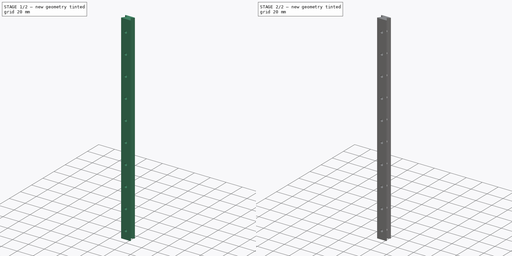
[diagram: build sequence overview — one tinted view per stage of 2, left to right]
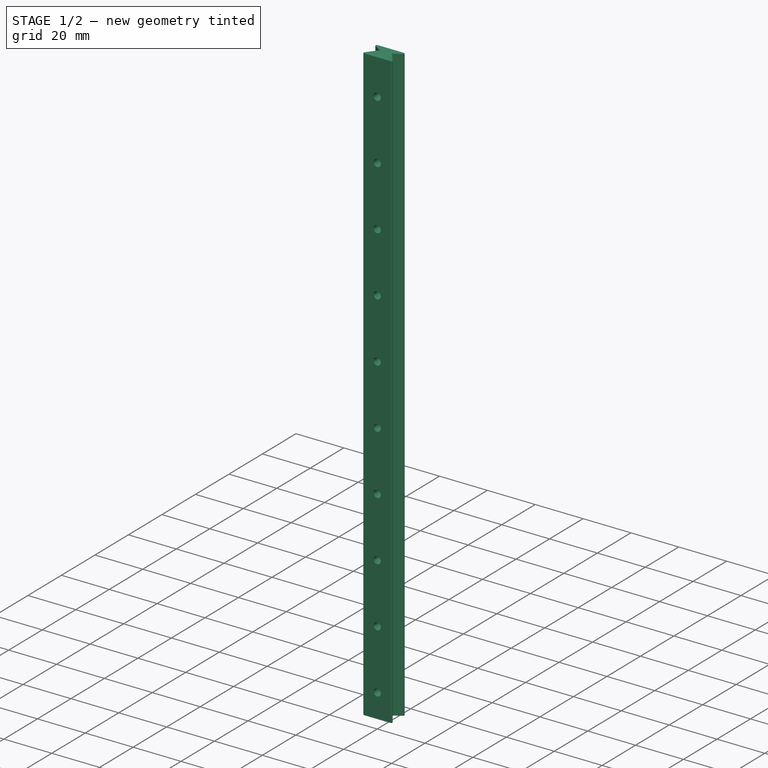
[diagram: stage 1 of 2 — iso view after this stage's code; geometry added in this stage tinted green]
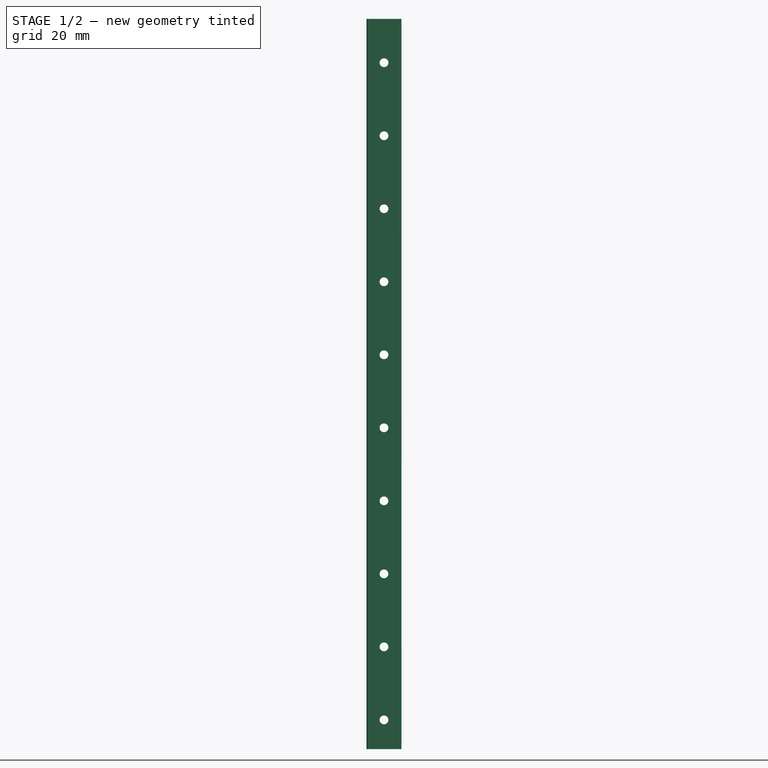
[diagram: stage 1 of 2 — front view after this stage's code; geometry added in this stage tinted green]
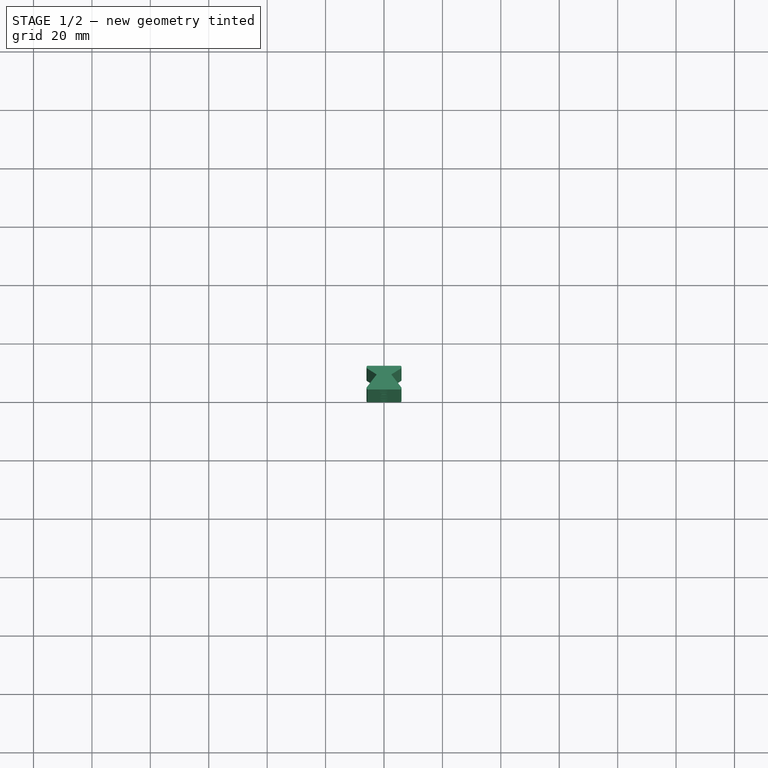
[diagram: stage 1 of 2 — top view after this stage's code; geometry added in this stage tinted green]
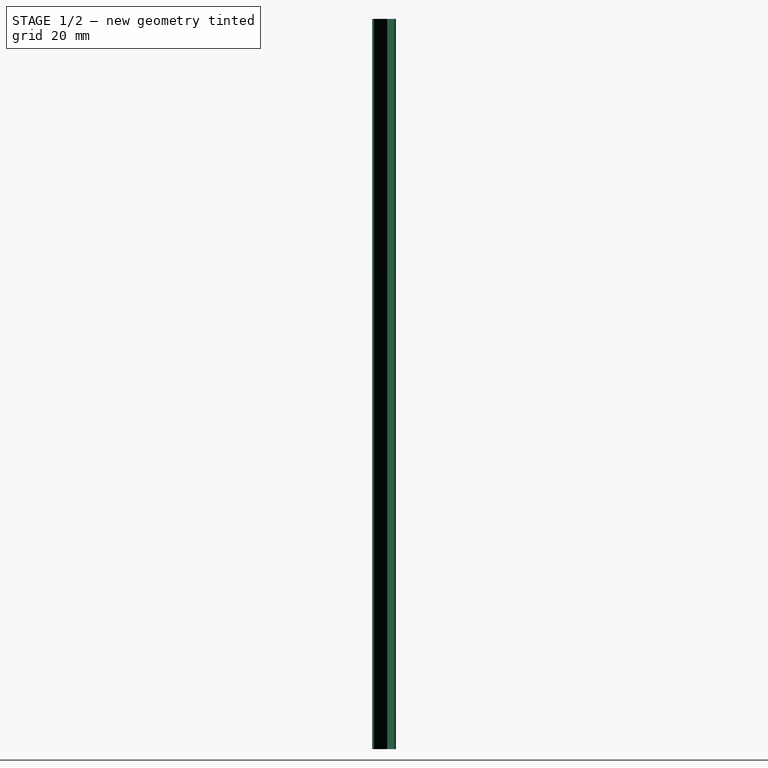
[diagram: stage 1 of 2 — right view after this stage's code; geometry added in this stage tinted green]
FCSTD DOCUMENT  (FreeCAD 0.21R33771 (Git))
Label: Guida-quadra-12
License: All rights reserved
LicenseURL: https://en.wikipedia.org/wiki/All_rights_reserved
objects: Sketcher::SketchObject×3, PartDesign::Pocket×2, PartDesign::Pad×1, PartDesign::Body×1
note: 10 computed .brp shape members not serialized (recipe doc carries the construction recipe); baked Part::Feature solids carry a one-line shape summary decoded from their .brp

FEATURE [Sketcher::SketchObject] Sketch
  FullyConstrained = true
  MapMode = 5
  Support = -> [XY_Plane]
  sketch-geometry (10):
    g0: LineSegment StartX=-5.5 StartY=0 StartZ=0 EndX=5.5 EndY=0 EndZ=0
    g1: LineSegment StartX=5.5 StartY=8.15196 StartZ=0 EndX=-5.5 EndY=8.15196 EndZ=0
    g2: LineSegment StartX=-5.76828 StartY=7.23003 StartZ=0 EndX=-2.5 EndY=5.15196 EndZ=0
    g3: LineSegment StartX=-2.5 StartY=5.15196 StartZ=0 EndX=-5.89401 EndY=0.807831 EndZ=0
    g4: LineSegment StartX=5.76828 StartY=7.23003 StartZ=0 EndX=2.5 EndY=5.15196 EndZ=0
    g5: LineSegment StartX=2.5 StartY=5.15196 StartZ=0 EndX=5.89401 EndY=0.807831 EndZ=0
    g6: ArcOfCircle CenterX=-5.5 CenterY=0.5 CenterZ=0 NormalX=0 NormalY=0 NormalZ=1 AngleXU=0 Radius=0.5 StartAngle=2.47837 EndAngle=4.71239
    g7: ArcOfCircle CenterX=5.5 CenterY=0.5 CenterZ=0 NormalX=0 NormalY=0 NormalZ=1 AngleXU=0 Radius=0.5 StartAngle=4.71239 EndAngle=6.94641
    g8: ArcOfCircle CenterX=-5.5 CenterY=7.65196 CenterZ=0 NormalX=0 NormalY=0 NormalZ=1 AngleXU=0 Radius=0.5 StartAngle=1.5708 EndAngle=4.14604
    g9: ArcOfCircle CenterX=5.5 CenterY=7.65196 CenterZ=0 NormalX=0 NormalY=0 NormalZ=1 AngleXU=0 Radius=0.5 StartAngle=5.27874 EndAngle=7.85398
  constraints (23):
    c: Coincident(g3,g2)
    c: Coincident(g5,g4)
    c: Equal(g0,g1)
    c: Tangent(g3,g6) = -1.5708
    c: Tangent(g0,g6) = -1.5708
    c: Tangent(g5,g7) = 1.5708
    c: Tangent(g0,g7) = -1.5708
    c: Radius(g7) = 0.5
    c: Equal(g6,g7)
    c: Tangent(g2,g8) = -1.5708
    c: Tangent(g1,g8) = -1.5708
    c: Tangent(g1,g9) = -1.5708
    c: Tangent(g4,g9) = 1.5708
    c: Symmetric(g6,g7,g-2)
    c: Symmetric(g8,g9,g-2)
    c: Equal(g7,g9)
    c: Equal(g9,g8)
    c: Symmetric(g2,g4,g-2)
    c: DistanceX(g6,g7) = 11
    c: DistanceY(g4,g9) = 2.5
    c: DistanceX(g2,g-1) = 2.5
    c: PointOnObject(g-1,g0)
    c: Angle(g5,g0) = 0.907571
FEATURE [PartDesign::Pad] Pad
  Direction = (0,0,1)
  Length = 250
  Length2 = 10
  Profile = -> Sketch
  ReferenceAxis = -> Sketch [N_Axis]
  Type = 0
FEATURE [Sketcher::SketchObject] Sketch001
  FullyConstrained = true
  MapMode = 5
  Placement = pos=(0,8.15196,0) rot=(0,0.707107,0.707107;3.14159rad)
  Support = -> [Pad]
  sketch-geometry (19):
    g0: Circle CenterX=0 CenterY=10 CenterZ=0 NormalX=0 NormalY=0 NormalZ=1 AngleXU=0 Radius=1.5
    g1: Circle CenterX=0 CenterY=35 CenterZ=0 NormalX=0 NormalY=0 NormalZ=1 AngleXU=0 Radius=1.5
    g2: LineSegment StartX=0 StartY=10 StartZ=0 EndX=0 EndY=35 EndZ=0
    g3: Circle CenterX=1.64331e-11 CenterY=60 CenterZ=0 NormalX=0 NormalY=0 NormalZ=1 AngleXU=0 Radius=1.5
    g4: LineSegment StartX=0 StartY=35 StartZ=0 EndX=1.64331e-11 EndY=60 EndZ=0
    g5: Circle CenterX=2.91086e-11 CenterY=85 CenterZ=0 NormalX=0 NormalY=0 NormalZ=1 AngleXU=0 Radius=1.5
    g6: LineSegment StartX=1.64331e-11 StartY=60 StartZ=0 EndX=2.91086e-11 EndY=85 EndZ=0
    g7: Circle CenterX=3.89814e-11 CenterY=110 CenterZ=0 NormalX=0 NormalY=0 NormalZ=1 AngleXU=0 Radius=1.5
    g8: LineSegment StartX=2.91086e-11 StartY=85 StartZ=0 EndX=3.89814e-11 EndY=110 EndZ=0
    g9: Circle CenterX=5.02481e-11 CenterY=135 CenterZ=0 NormalX=0 NormalY=0 NormalZ=1 AngleXU=0 Radius=1.5
    g10: LineSegment StartX=3.89814e-11 StartY=110 StartZ=0 EndX=5.02481e-11 EndY=135 EndZ=0
    g11: Circle CenterX=6.14909e-11 CenterY=160 CenterZ=0 NormalX=0 NormalY=0 NormalZ=1 AngleXU=0 Radius=1.5
    g12: LineSegment StartX=5.02481e-11 StartY=135 StartZ=0 EndX=6.14909e-11 EndY=160 EndZ=0
    g13: Circle CenterX=7.26801e-11 CenterY=185 CenterZ=0 NormalX=0 NormalY=0 NormalZ=1 AngleXU=0 Radius=1.5
    g14: LineSegment StartX=6.14909e-11 StartY=160 StartZ=0 EndX=7.26801e-11 EndY=185 EndZ=0
    g15: Circle CenterX=8.35849e-11 CenterY=210 CenterZ=0 NormalX=0 NormalY=0 NormalZ=1 AngleXU=0 Radius=1.5
    g16: LineSegment StartX=7.26801e-11 StartY=185 StartZ=0 EndX=8.35849e-11 EndY=210 EndZ=0
    g17: Circle CenterX=9.38906e-11 CenterY=235 CenterZ=0 NormalX=0 NormalY=0 NormalZ=1 AngleXU=0 Radius=1.5
    g18: LineSegment StartX=8.35849e-11 StartY=210 StartZ=0 EndX=9.38906e-11 EndY=235 EndZ=0
  constraints (48):
    c: PointOnObject(g0,g-2)
    c: Radius(g0) = 1.5
    c: DistanceY(g-1,g0) = 10
    c: Radius(g1) = 1.5
    c: Coincident(g0,g2)
    c: Coincident(g1,g2)
    c: Distance(g2) = 25
    c: Radius(g3) = 1.5
    c: Coincident(g1,g4)
    c: Coincident(g3,g4)
    c: Equal(g2,g4)
    c: Parallel(g4,g2)
    c: Radius(g5) = 1.5
    c: Coincident(g3,g6)
    c: Coincident(g5,g6)
    c: Equal(g2,g6)
    c: Parallel(g6,g2)
    c: Radius(g7) = 1.5
    c: Coincident(g5,g8)
    c: Coincident(g7,g8)
    c: Equal(g2,g8)
    c: Parallel(g8,g2)
    c: Radius(g9) = 1.5
    c: Coincident(g7,g10)
    c: Coincident(g9,g10)
    c: Equal(g2,g10)
    c: Parallel(g10,g2)
    c: Radius(g11) = 1.5
    c: Coincident(g9,g12)
    c: Coincident(g11,g12)
    c: Equal(g2,g12)
    c: Parallel(g12,g2)
    c: Radius(g13) = 1.5
    c: Coincident(g11,g14)
    c: Coincident(g13,g14)
    c: Equal(g2,g14)
    c: Parallel(g14,g2)
    c: Radius(g15) = 1.5
    c: Coincident(g13,g16)
    c: Coincident(g15,g16)
    c: Equal(g2,g16)
    c: Parallel(g16,g2)
    c: Radius(g17) = 1.5
    c: Coincident(g15,g18)
    c: Coincident(g17,g18)
    c: Equal(g2,g18)
    c: Parallel(g18,g2)
    c: PointOnObject(g1,g-2)
FEATURE [PartDesign::Pocket] Pocket
  BaseFeature = -> Pad
  Direction = (0,-1,2e-16)
  Length = 5
  Length2 = 5
  Profile = -> Sketch001
  ReferenceAxis = -> Sketch001 [N_Axis]
  Type = 1
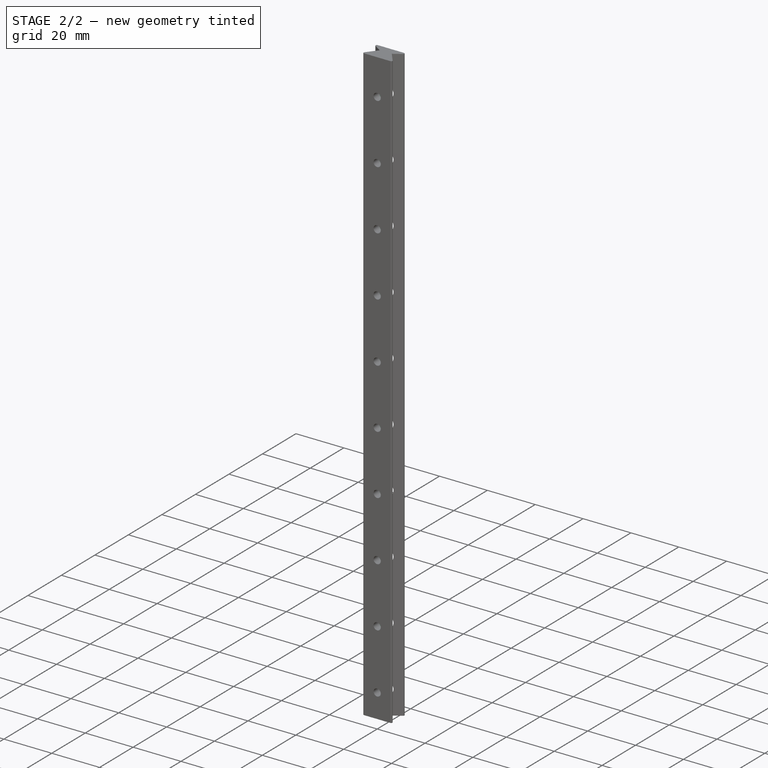
[diagram: stage 2 of 2 — iso view after this stage's code; geometry added in this stage tinted green]
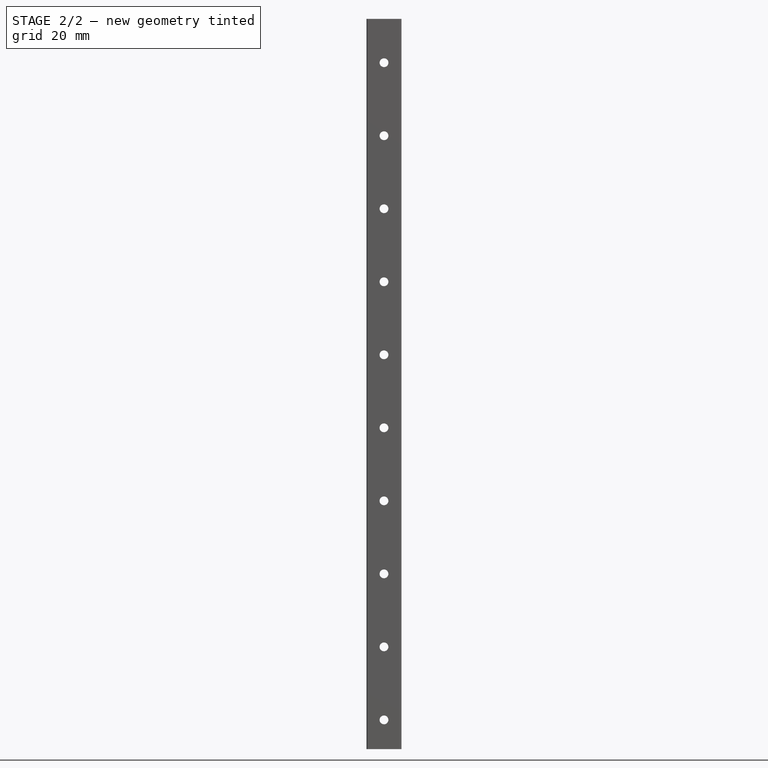
[diagram: stage 2 of 2 — front view after this stage's code; geometry added in this stage tinted green]
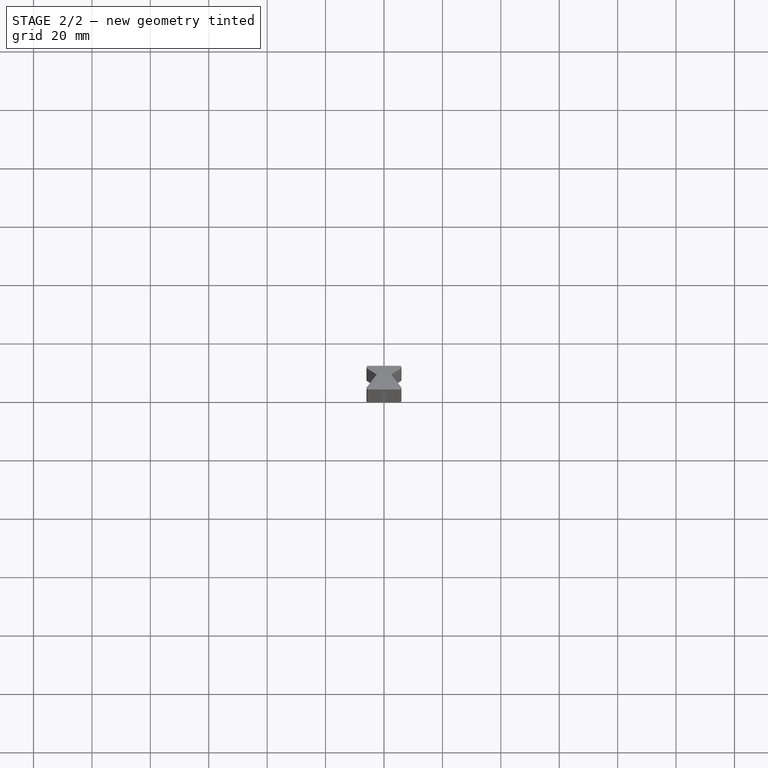
[diagram: stage 2 of 2 — top view after this stage's code; geometry added in this stage tinted green]
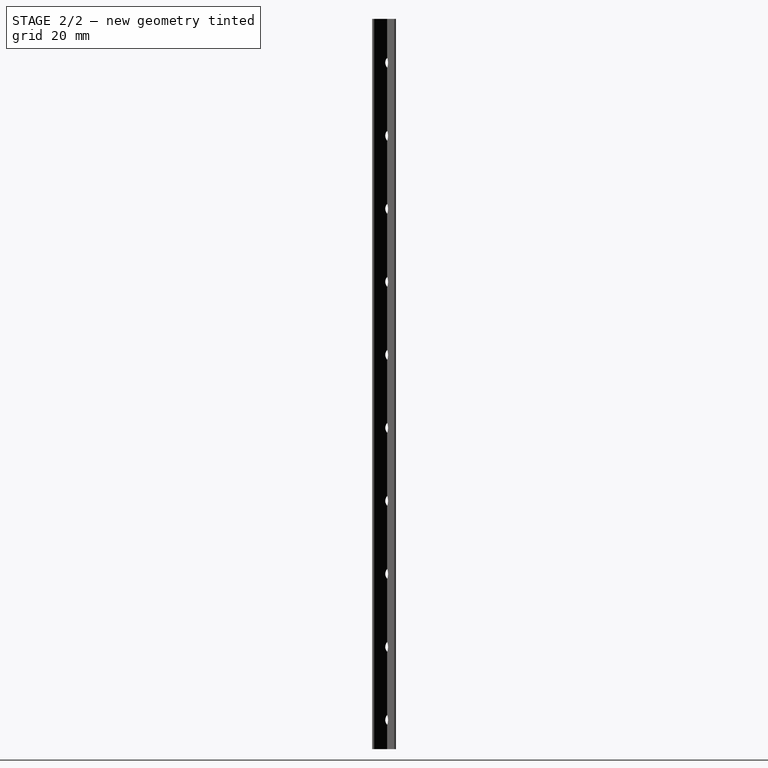
[diagram: stage 2 of 2 — right view after this stage's code; geometry added in this stage tinted green]
FEATURE [Sketcher::SketchObject] Sketch002
  ExternalGeometry = -> [Pocket]
  FullyConstrained = true
  MapMode = 5
  Placement = pos=(0,8.15196,0) rot=(0,0.707107,0.707107;3.14159rad)
  Support = -> [Pocket]
  sketch-geometry (19):
    g0: Circle CenterX=0 CenterY=235 CenterZ=0 NormalX=0 NormalY=0 NormalZ=1 AngleXU=0 Radius=3
    g1: Circle CenterX=0 CenterY=210 CenterZ=0 NormalX=0 NormalY=0 NormalZ=1 AngleXU=0 Radius=3
    g2: LineSegment StartX=0 StartY=235 StartZ=0 EndX=0 EndY=210 EndZ=0
    g3: Circle CenterX=0 CenterY=185 CenterZ=0 NormalX=0 NormalY=0 NormalZ=1 AngleXU=0 Radius=3
    g4: LineSegment StartX=0 StartY=210 StartZ=0 EndX=0 EndY=185 EndZ=0
    g5: Circle CenterX=0 CenterY=160 CenterZ=0 NormalX=0 NormalY=0 NormalZ=1 AngleXU=0 Radius=3
    g6: LineSegment StartX=0 StartY=185 StartZ=0 EndX=0 EndY=160 EndZ=0
    g7: Circle CenterX=0 CenterY=135 CenterZ=0 NormalX=0 NormalY=0 NormalZ=1 AngleXU=0 Radius=3
    g8: LineSegment StartX=0 StartY=160 StartZ=0 EndX=0 EndY=135 EndZ=0
    g9: Circle CenterX=0 CenterY=110 CenterZ=0 NormalX=0 NormalY=0 NormalZ=1 AngleXU=0 Radius=3
    g10: LineSegment StartX=0 StartY=135 StartZ=0 EndX=0 EndY=110 EndZ=0
    g11: Circle CenterX=0 CenterY=85 CenterZ=0 NormalX=0 NormalY=0 NormalZ=1 AngleXU=0 Radius=3
    g12: LineSegment StartX=0 StartY=110 StartZ=0 EndX=0 EndY=85 EndZ=0
    g13: Circle CenterX=0 CenterY=60 CenterZ=0 NormalX=0 NormalY=0 NormalZ=1 AngleXU=0 Radius=3
    g14: LineSegment StartX=0 StartY=85 StartZ=0 EndX=0 EndY=60 EndZ=0
    g15: Circle CenterX=0 CenterY=35 CenterZ=0 NormalX=0 NormalY=0 NormalZ=1 AngleXU=0 Radius=3
    g16: LineSegment StartX=0 StartY=60 StartZ=0 EndX=0 EndY=35 EndZ=0
    g17: Circle CenterX=0 CenterY=10 CenterZ=0 NormalX=0 NormalY=0 NormalZ=1 AngleXU=0 Radius=3
    g18: LineSegment StartX=0 StartY=35 StartZ=0 EndX=0 EndY=10 EndZ=0
  constraints (46):
    c: Coincident(g0,g-3)
    c: Radius(g0) = 3
    c: Radius(g1) = 3
    c: Coincident(g0,g2)
    c: Coincident(g1,g2)
    c: Radius(g3) = 3
    c: Coincident(g1,g4)
    c: Coincident(g3,g4)
    c: Equal(g2,g4)
    c: Parallel(g4,g2)
    c: Radius(g5) = 3
    c: Coincident(g3,g6)
    c: Coincident(g5,g6)
    c: Equal(g2,g6)
    c: Parallel(g6,g2)
    c: Radius(g7) = 3
    c: Coincident(g5,g8)
    c: Coincident(g7,g8)
    c: Equal(g2,g8)
    c: Parallel(g8,g2)
    c: Radius(g9) = 3
    c: Coincident(g7,g10)
    c: Coincident(g9,g10)
    c: Equal(g2,g10)
    c: Parallel(g10,g2)
    c: Radius(g11) = 3
    c: Coincident(g9,g12)
    c: Coincident(g11,g12)
    c: Equal(g2,g12)
    c: Parallel(g12,g2)
    c: Radius(g13) = 3
    c: Coincident(g11,g14)
    c: Coincident(g13,g14)
    c: Equal(g2,g14)
    c: Parallel(g14,g2)
    c: Radius(g15) = 3
    c: Coincident(g13,g16)
    c: Coincident(g15,g16)
    c: Equal(g2,g16)
    c: Parallel(g16,g2)
    c: Radius(g17) = 3
    c: Coincident(g15,g18)
    c: Coincident(g17,g18)
    c: Equal(g2,g18)
    c: Parallel(g18,g2)
    c: Coincident(g1,g-4)
FEATURE [PartDesign::Pocket] Pocket001
  BaseFeature = -> Pocket
  Direction = (0,-1,2e-16)
  Length = 5
  Length2 = 5
  Profile = -> Sketch002
  ReferenceAxis = -> Sketch002 [N_Axis]
  Type = 0
FEATURE [PartDesign::Body] Body
  Group = -> [Sketch,Pad,Sketch001,Pocket,Sketch002,Pocket001]
  Origin = -> Origin
  Tip = -> Pocket001
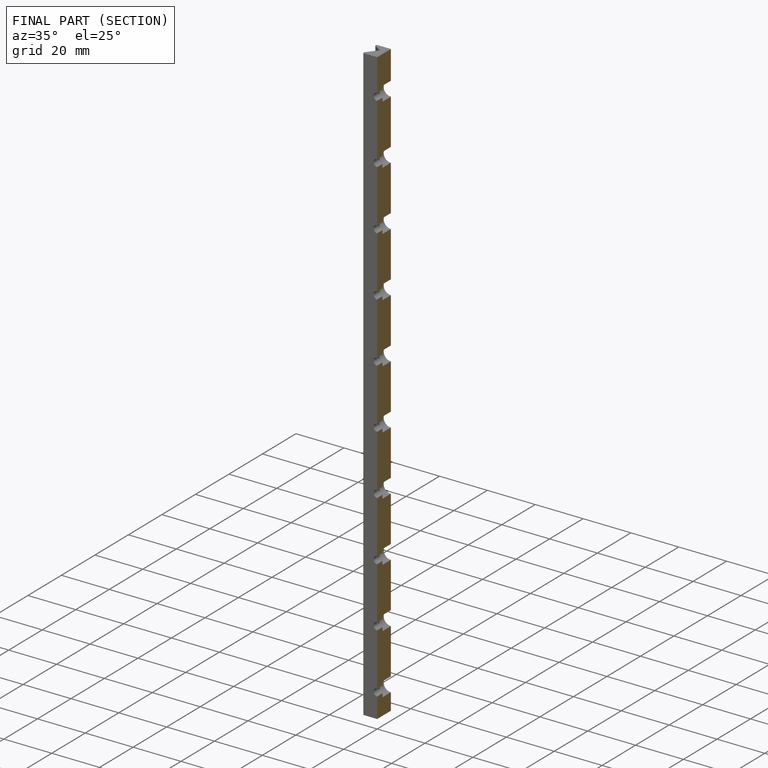
[diagram: finished part — half-section view (interior)]
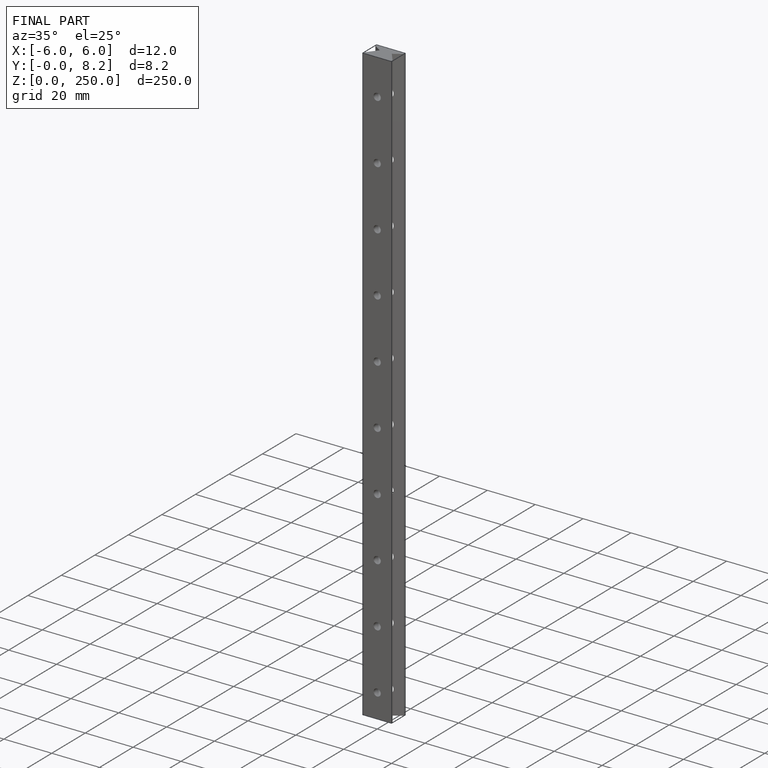
[diagram: finished part — iso view with bounding-box wireframe]
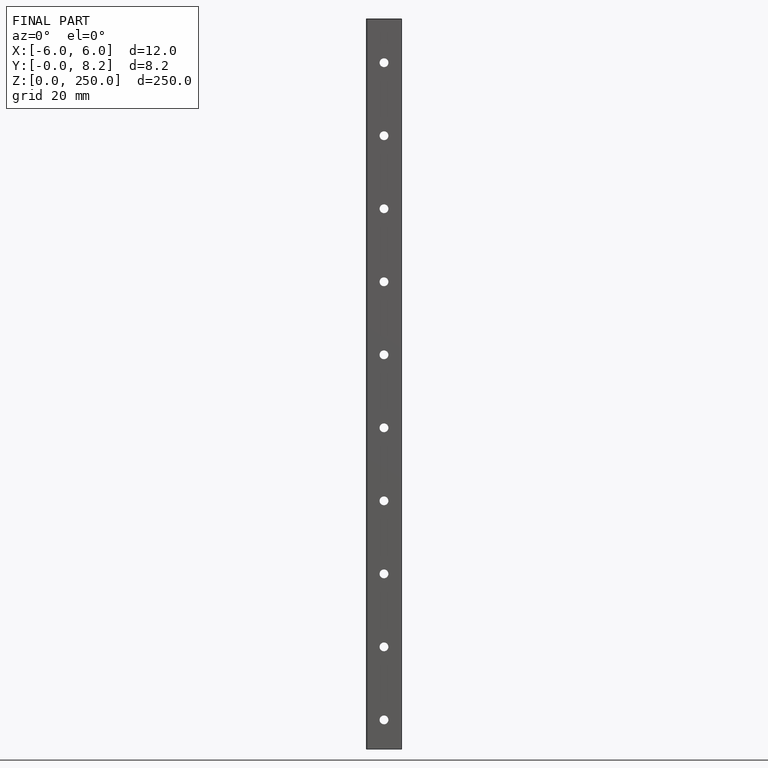
[diagram: finished part — front view with bounding-box wireframe]
